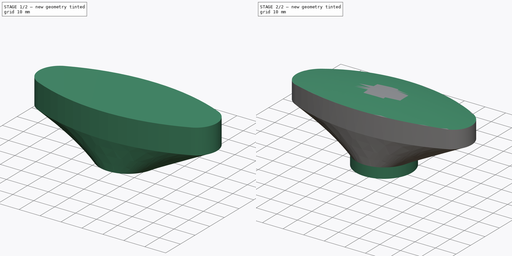
[diagram: build sequence overview — one tinted view per stage of 2, left to right]
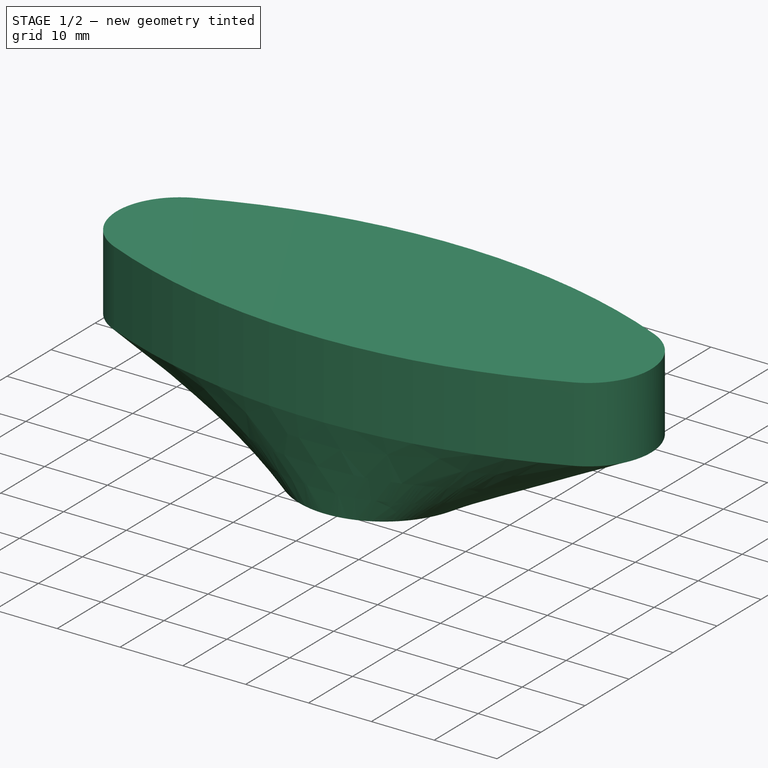
[diagram: stage 1 of 2 — iso view after this stage's code; geometry added in this stage tinted green]
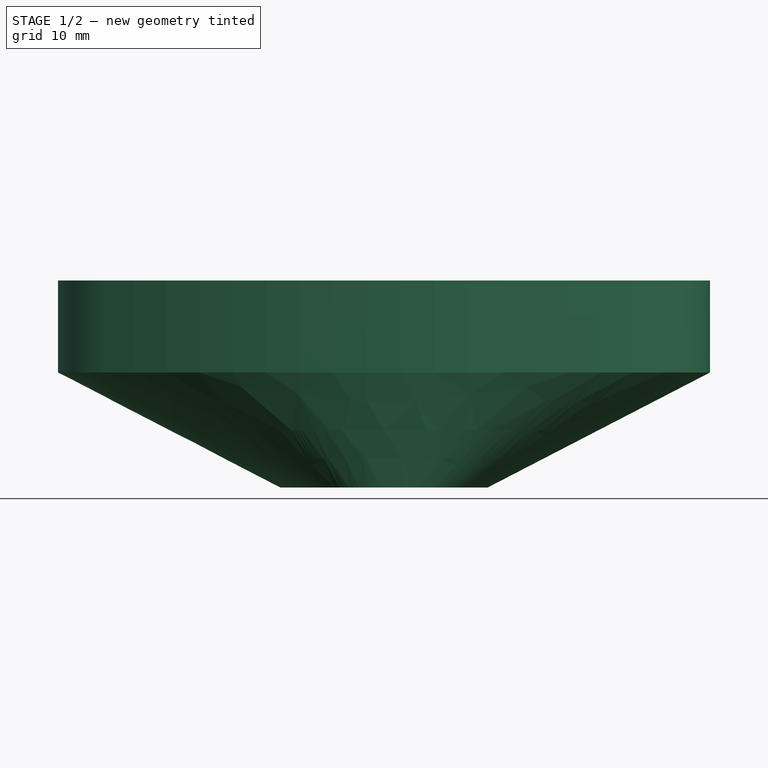
[diagram: stage 1 of 2 — front view after this stage's code; geometry added in this stage tinted green]
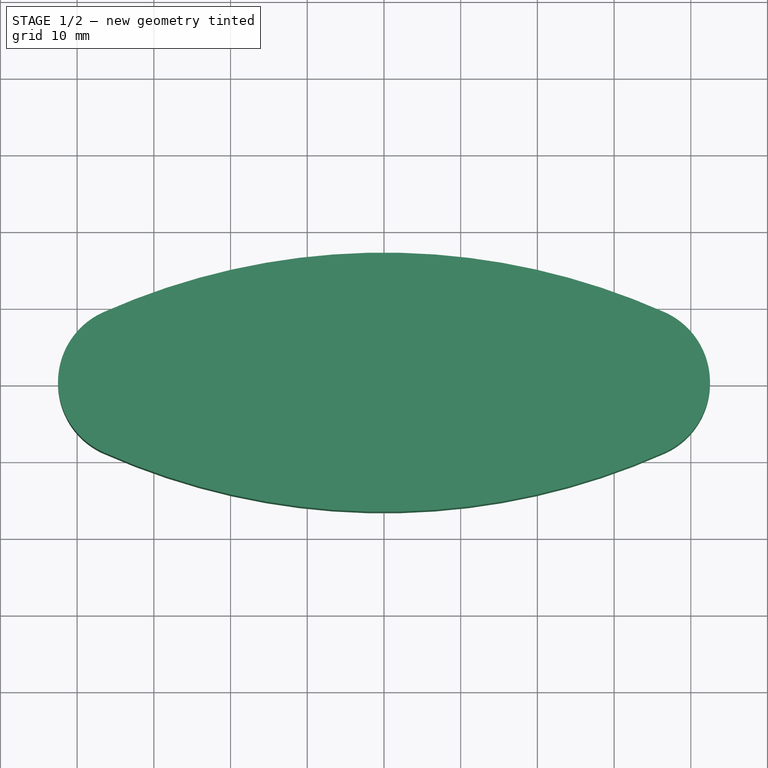
[diagram: stage 1 of 2 — top view after this stage's code; geometry added in this stage tinted green]
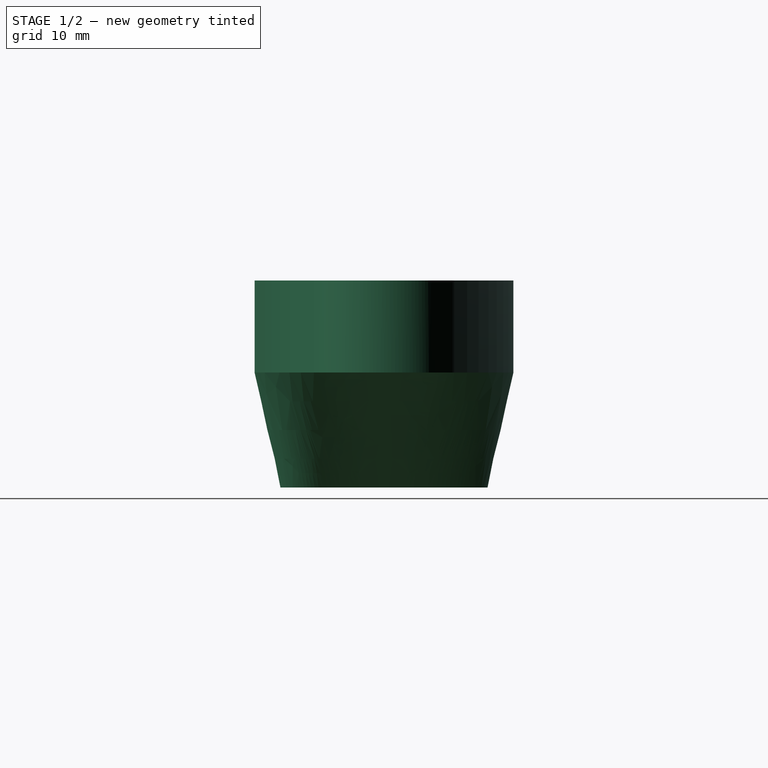
[diagram: stage 1 of 2 — right view after this stage's code; geometry added in this stage tinted green]
FCSTD DOCUMENT  (FreeCAD 0.21R33771 (Git))
Label: ex79
License: All rights reserved
LicenseURL: https://en.wikipedia.org/wiki/All_rights_reserved
objects: Sketcher::SketchObject×4, PartDesign::Pad×2, PartDesign::AdditiveLoft×1, PartDesign::SubtractivePipe×1, PartDesign::Body×1
note: 13 computed .brp shape members not serialized (recipe doc carries the construction recipe); baked Part::Feature solids carry a one-line shape summary decoded from their .brp

FEATURE [Sketcher::SketchObject] Sketch
  FullyConstrained = true
  MapMode = 5
  Support = -> [XY_Plane]
  sketch-geometry (4):
    g0: ArcOfCircle CenterX=-32.5 CenterY=0 CenterZ=0 NormalX=0 NormalY=0 NormalZ=1 AngleXU=0 Radius=10 StartAngle=1.98914 EndAngle=4.29404
    g1: ArcOfCircle CenterX=32.5 CenterY=0 CenterZ=0 NormalX=0 NormalY=0 NormalZ=1 AngleXU=0 Radius=10 StartAngle=5.13074 EndAngle=7.43564
    g2: ArcOfCircle CenterX=0 CenterY=-73.101 CenterZ=0 NormalX=0 NormalY=0 NormalZ=1 AngleXU=0 Radius=90 StartAngle=1.15245 EndAngle=1.98914
    g3: ArcOfCircle CenterX=0 CenterY=73.101 CenterZ=0 NormalX=0 NormalY=0 NormalZ=1 AngleXU=0 Radius=90 StartAngle=4.29404 EndAngle=5.13074
  constraints (13):
    c: PointOnObject(g0,g-1)
    c: Symmetric(g0,g1,g-1)
    c: Equal(g0,g1)
    c: PointOnObject(g2,g-2)
    c: Radius(g2) = 90
    c: Radius(g0) = 10
    c: PointOnObject(g3,g-2)
    c: Equal(g3,g2)
    c: DistanceX(g0,g1) = 65
    c: Coincident(g0,g3)
    c: Coincident(g0,g2)
    c: Tangent(g1,g2) = -1.5708
    c: Tangent(g1,g3) = -1.5708
FEATURE [Sketcher::SketchObject] Sketch001
  AttachmentOffset = pos=(0,0,-15) rot=(0,0,1;0rad)
  FullyConstrained = true
  MapMode = 5
  Placement = pos=(0,0,-15) rot=(0,0,1;0rad)
  Support = -> [XY_Plane]
  sketch-geometry (1):
    g0: Circle CenterX=0 CenterY=0 CenterZ=0 NormalX=0 NormalY=0 NormalZ=1 AngleXU=0 Radius=13.5
  constraints (2):
    c: Coincident(g0,g-1)
    c: Radius(g0) = 13.5
FEATURE [PartDesign::AdditiveLoft] AdditiveLoft
  Closed = false
  Profile = -> Sketch
  Ruled = false
  Sections = -> [Sketch001]
FEATURE [PartDesign::Pad] Pad
  BaseFeature = -> AdditiveLoft
  Direction = (0,0,1)
  Length = 12
  Length2 = 10
  Profile = -> Sketch
  ReferenceAxis = -> Sketch [N_Axis]
  Type = 0
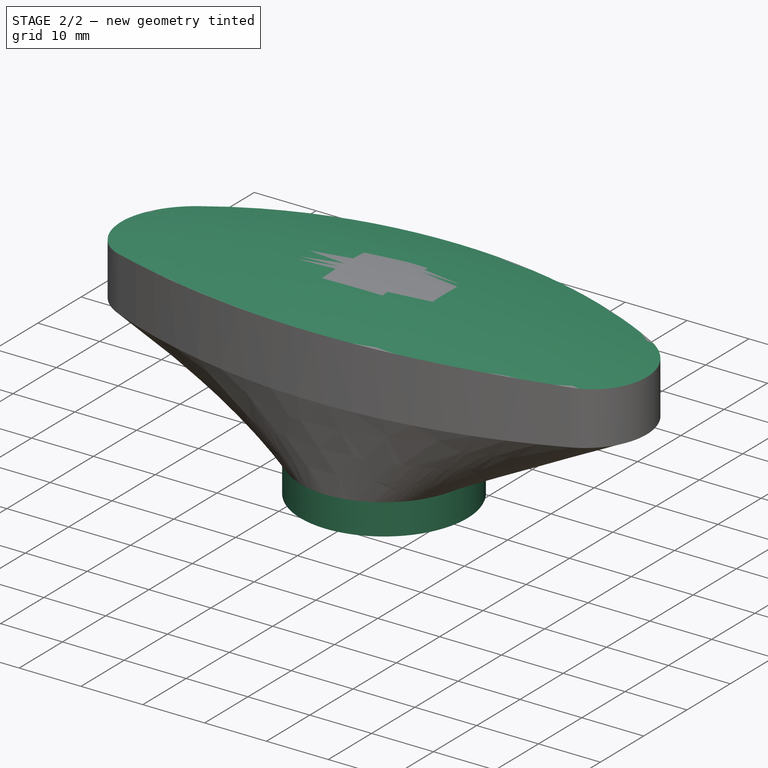
[diagram: stage 2 of 2 — iso view after this stage's code; geometry added in this stage tinted green]
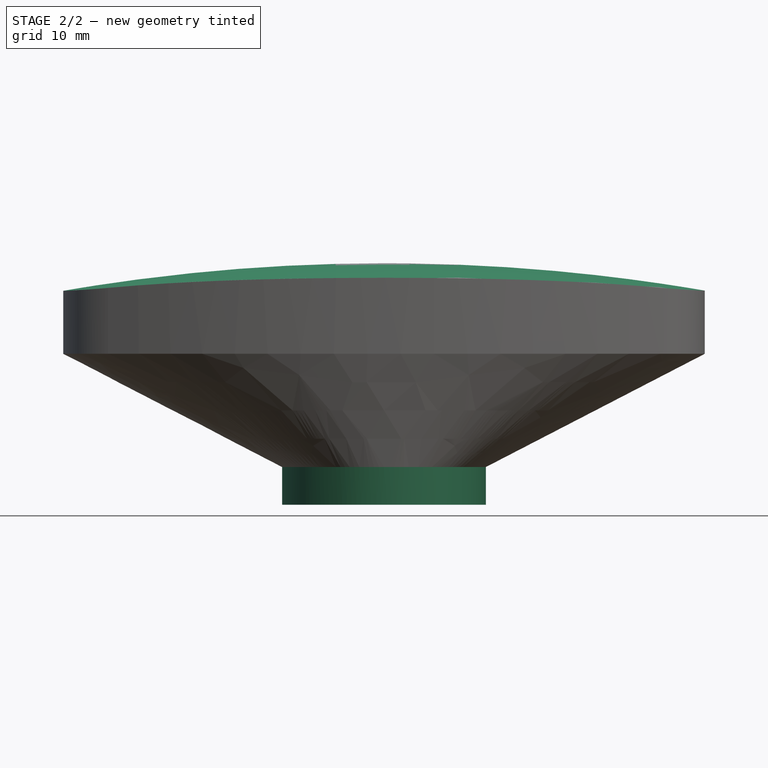
[diagram: stage 2 of 2 — front view after this stage's code; geometry added in this stage tinted green]
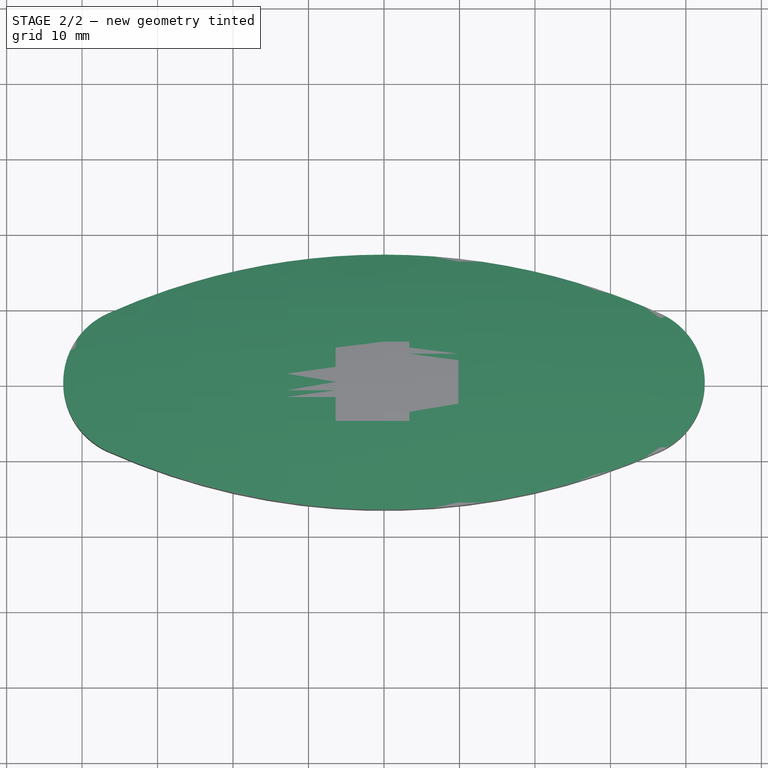
[diagram: stage 2 of 2 — top view after this stage's code; geometry added in this stage tinted green]
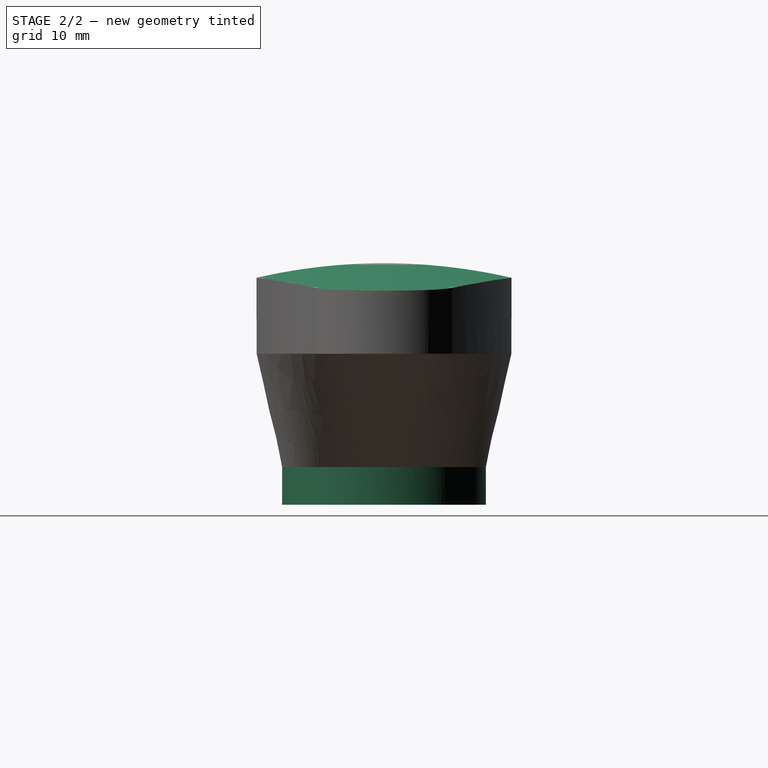
[diagram: stage 2 of 2 — right view after this stage's code; geometry added in this stage tinted green]
FEATURE [PartDesign::Pad] Pad001
  BaseFeature = -> Pad
  Direction = (0,0,1)
  Length = 5
  Length2 = 10
  Profile = -> Sketch001
  ReferenceAxis = -> Sketch001 [N_Axis]
  Reversed = true
  Type = 0
FEATURE [Sketcher::SketchObject] Sketch002
  ExternalGeometry = -> [Pad001]
  FullyConstrained = false
  MapMode = 5
  Placement = pos=(0,0,0) rot=(1,0,0;1.5708rad)
  Support = -> [XZ_Plane]
  sketch-geometry (2):
    g0: ArcOfCircle CenterX=0.0783494 CenterY=-238 CenterZ=0 NormalX=0 NormalY=0 NormalZ=1 AngleXU=0 Radius=250 StartAngle=1.34974 EndAngle=1.79185
    g1: LineSegment StartX=-54.7364 StartY=5.91667 StartZ=0 EndX=54.8931 EndY=5.91667 EndZ=0
  constraints (5):
    c: Radius(g0) = 250
    c: Tangent(g0,g-3)
    c: Horizontal(g0,g0)
    c: Coincident(g1,g0)
    c: Coincident(g1,g0)
FEATURE [Sketcher::SketchObject] Sketch003
  ExternalGeometry = -> [Pad001]
  FullyConstrained = false
  MapMode = 5
  Placement = pos=(0,0,0) rot=(0.57735,0.57735,0.57735;2.0944rad)
  Support = -> [YZ_Plane]
  sketch-geometry (4):
    g0: ArcOfCircle CenterX=0 CenterY=-63 CenterZ=0 NormalX=0 NormalY=0 NormalZ=1 AngleXU=0 Radius=75 StartAngle=1.11005 EndAngle=2.00059
    g1: LineSegment StartX=-31.2511 StartY=5.17896 StartZ=0 EndX=-31.2511 EndY=34.8853 EndZ=0
    g2: LineSegment StartX=-31.2511 StartY=34.8853 StartZ=0 EndX=33.3465 EndY=34.8853 EndZ=0
    g3: LineSegment StartX=33.3465 StartY=34.8853 StartZ=0 EndX=33.3465 EndY=4.17895 EndZ=0
  constraints (10):
    c: PointOnObject(g0,g-2)
    c: Radius(g0) = 75
    c: Tangent(g0,g-3)
    c: Vertical(g1)
    c: Horizontal(g2)
    c: Coincident(g3,g2)
    c: Vertical(g3)
    c: Coincident(g0,g1)
    c: Coincident(g0,g3)
    c: Coincident(g1,g2)
FEATURE [PartDesign::SubtractivePipe] SubtractivePipe
  AuxilleryCurvelinear = true
  AuxillerySpineTangent = false
  BaseFeature = -> Pad001
  Binormal = (0,0,0)
  Mode = 0
  Profile = -> Sketch003
  Spine = -> Sketch002
  SpineTangent = false
  Transformation = 0
  Transition = 0
FEATURE [PartDesign::Body] Body
  Group = -> [Sketch,Sketch001,AdditiveLoft,Pad,Pad001,Sketch002,Sketch003,SubtractivePipe]
  Origin = -> Origin
  Tip = -> SubtractivePipe
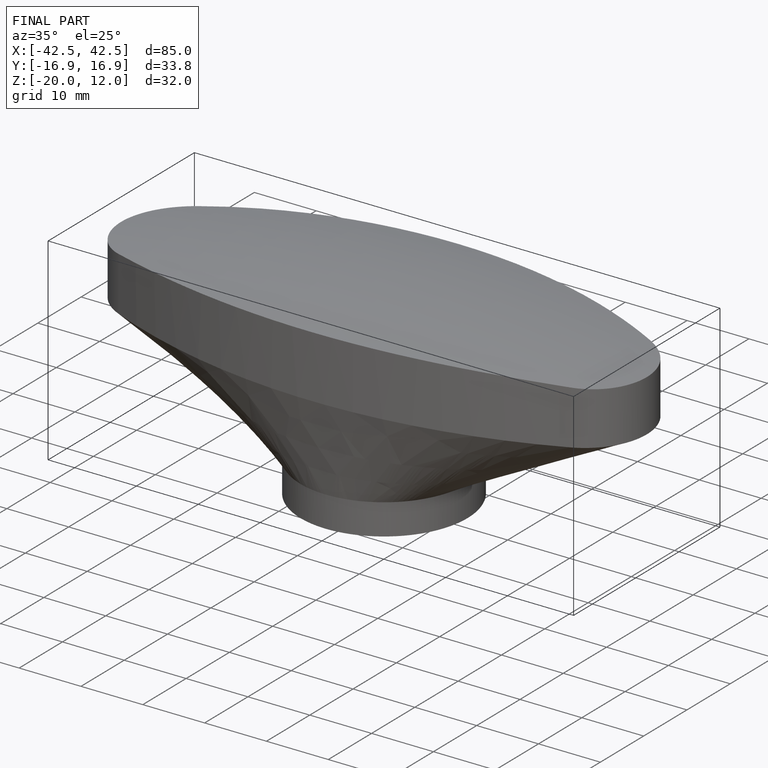
[diagram: finished part — iso view with bounding-box wireframe]
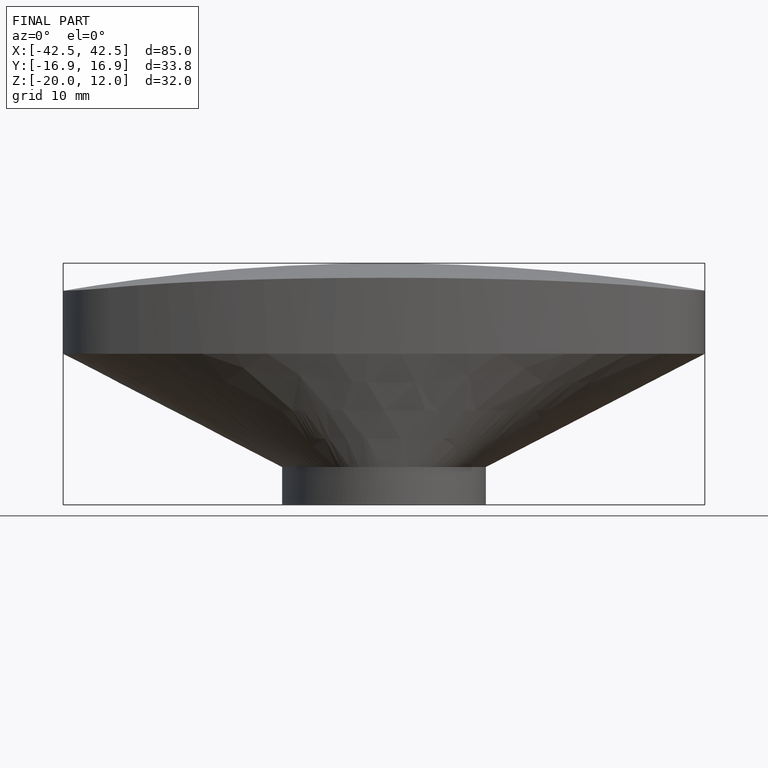
[diagram: finished part — front view with bounding-box wireframe]
